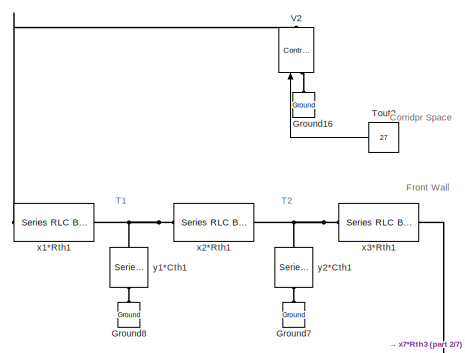
[diagram: root canvas - part 1/7, top center region]
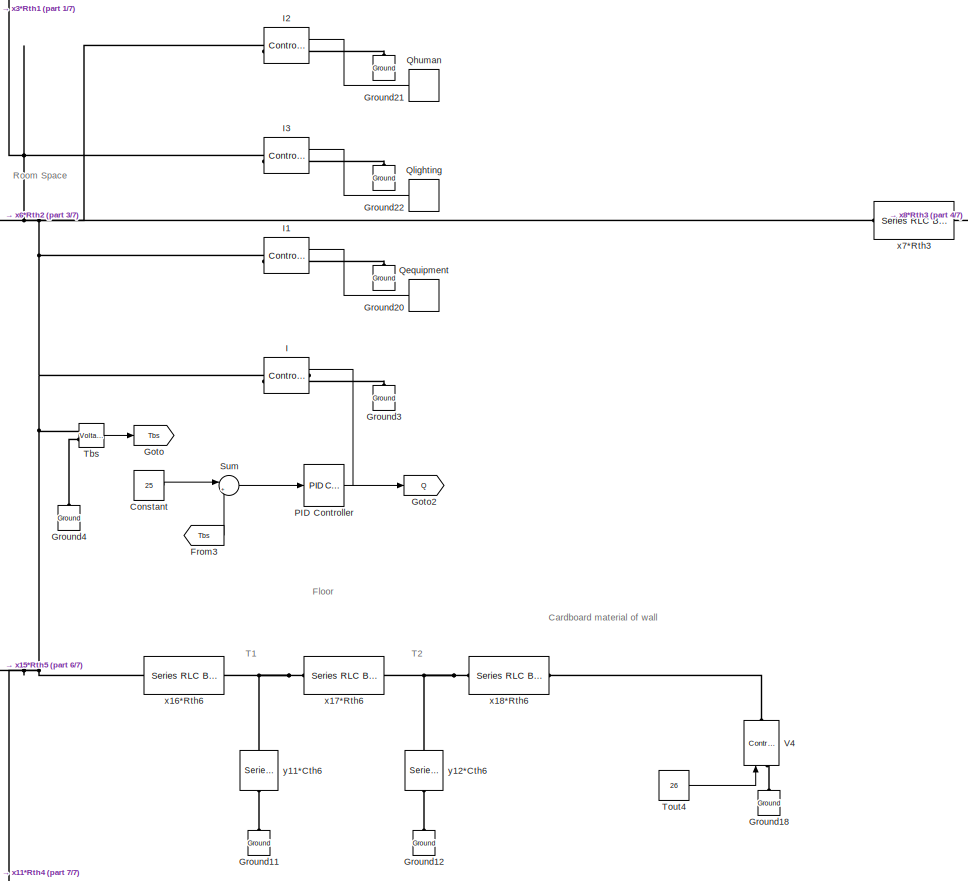
[diagram: root canvas - part 2/7, middle right region]
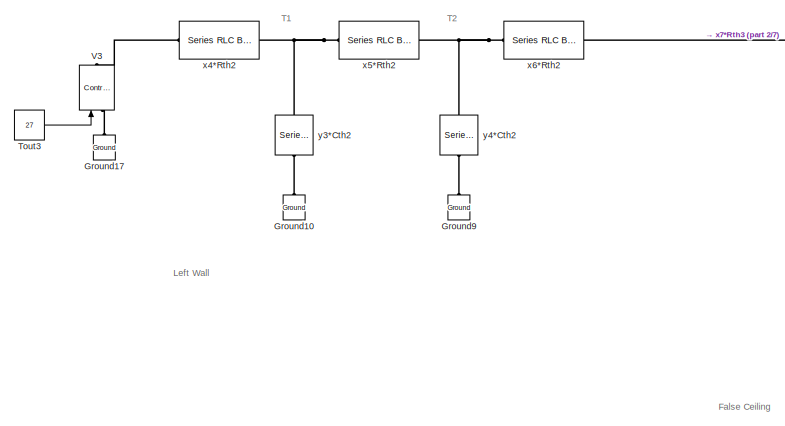
[diagram: root canvas - part 3/7, middle left region]
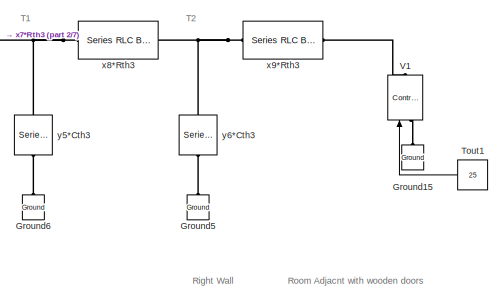
[diagram: root canvas - part 4/7, middle right region]
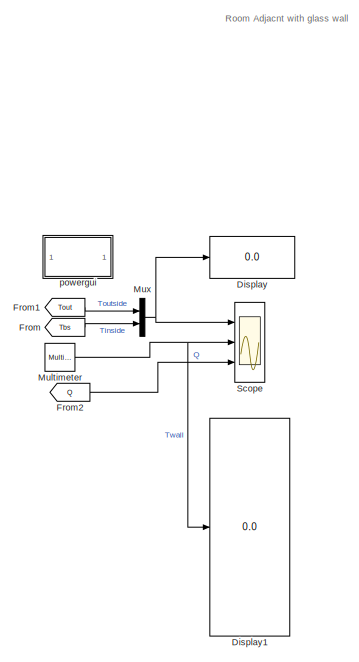
[diagram: root canvas - part 5/7, middle left region]
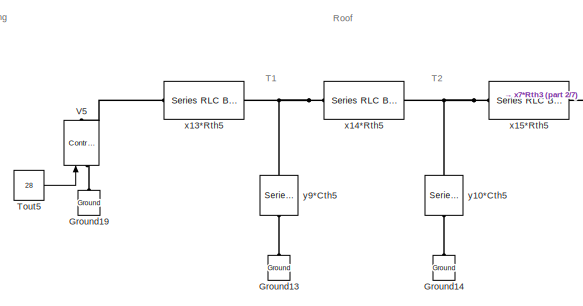
[diagram: root canvas - part 6/7, central region]
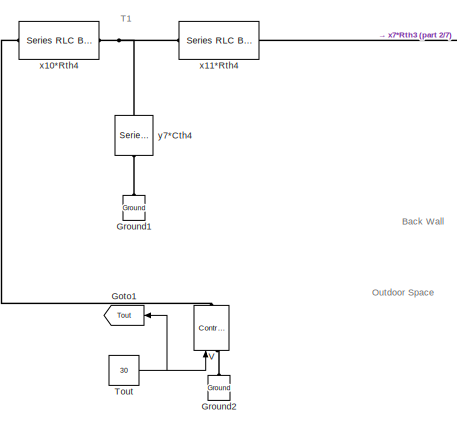
[diagram: root canvas - part 7/7, bottom center region]
MODEL slx_54d3127930ee
KIND model
CONFIG AbsTol = auto
CONFIG FixedStep = Ts
CONFIG InitFcn = Ts=1;\nDuration=36000;\n%% Coefficients of Rs and Cs\ny1 = 0.5\nx1 = 0.33;\ny2 = 0.5;\nx2 = 0.33;\nx3 = 0.33;\n\ny3 = 0.5\nx4 = 0.33;\ny4 = 0.5;\nx5 = 0.33;\nx6 = 0.33;\n\ny5 = 0.5\nx7 = 0.33;\ny6 = 0.5;\nx8 = 0.33;\nx9 = 0.33;\n\ny7 = 1\nx10 = 0.5;\n%y8 = 0.5;\nx11 = 0.5;\n%x12= 0.33;\n\ny9 = 0.5\nx13 = 0.33;\ny10 = 0.5;\nx14 = 0.33;\nx15 = 0.33;\n\ny11 = 0.5\nx16 = 0.33;\ny12 = 0.5;\nx17 = 0.33;\nx18 = 0.33;\n\nT1_initial_front=28;\nT...<+1089ch>
CONFIG MaxStep = auto
CONFIG MinStep = auto
CONFIG RelTol = 1e-3
CONFIG SampleTimeConstraint = Unconstrained
CONFIG Solver = ode3
CONFIG SolverMode = Auto
CONFIG SolverName = ode3
CONFIG StartTime = 0.0
CONFIG StopTime = Duration
BLOCK [Constant] Constant
  Value = 25
BLOCK [Display] Display
  Decimation = 1
  Ports = [1]
BLOCK [Display] Display1
  Decimation = 1
  Ports = [1]
BLOCK [From] From
  GotoTag = Tbs
BLOCK [From] From1
  GotoTag = Tout
BLOCK [From] From2
  GotoTag = Q
BLOCK [From] From3
  GotoTag = Tbs
BLOCK [Goto] Goto
  GotoTag = Tbs
BLOCK [Goto] Goto1
  GotoTag = Tout
BLOCK [Goto] Goto2
  GotoTag = Q
BLOCK [Reference] Ground1  REF=powerlib/Elements/Ground
  Ports = [0, 0, 0, 0, 0, 1]
  SourceBlock = powerlib/Elements/Ground
  SourceType = Ground
BLOCK [Reference] Ground10  REF=powerlib/Elements/Ground
  Ports = [0, 0, 0, 0, 0, 1]
  SourceBlock = powerlib/Elements/Ground
  SourceType = Ground
BLOCK [Reference] Ground11  REF=powerlib/Elements/Ground
  Ports = [0, 0, 0, 0, 0, 1]
  SourceBlock = powerlib/Elements/Ground
  SourceType = Ground
BLOCK [Reference] Ground12  REF=powerlib/Elements/Ground
  Ports = [0, 0, 0, 0, 0, 1]
  SourceBlock = powerlib/Elements/Ground
  SourceType = Ground
BLOCK [Reference] Ground13  REF=powerlib/Elements/Ground
  Ports = [0, 0, 0, 0, 0, 1]
  SourceBlock = powerlib/Elements/Ground
  SourceType = Ground
BLOCK [Reference] Ground14  REF=powerlib/Elements/Ground
  Ports = [0, 0, 0, 0, 0, 1]
  SourceBlock = powerlib/Elements/Ground
  SourceType = Ground
BLOCK [Reference] Ground15  REF=powerlib/Elements/Ground
  Ports = [0, 0, 0, 0, 0, 1]
  SourceBlock = powerlib/Elements/Ground
  SourceType = Ground
BLOCK [Reference] Ground16  REF=powerlib/Elements/Ground
  Ports = [0, 0, 0, 0, 0, 1]
  SourceBlock = powerlib/Elements/Ground
  SourceType = Ground
BLOCK [Reference] Ground17  REF=powerlib/Elements/Ground
  Ports = [0, 0, 0, 0, 0, 1]
  SourceBlock = powerlib/Elements/Ground
  SourceType = Ground
BLOCK [Reference] Ground18  REF=powerlib/Elements/Ground
  Ports = [0, 0, 0, 0, 0, 1]
  SourceBlock = powerlib/Elements/Ground
  SourceType = Ground
BLOCK [Reference] Ground19  REF=powerlib/Elements/Ground
  Ports = [0, 0, 0, 0, 0, 1]
  SourceBlock = powerlib/Elements/Ground
  SourceType = Ground
BLOCK [Reference] Ground2  REF=powerlib/Elements/Ground
  Ports = [0, 0, 0, 0, 0, 1]
  SourceBlock = powerlib/Elements/Ground
  SourceType = Ground
BLOCK [Reference] Ground20  REF=powerlib/Elements/Ground
  Ports = [0, 0, 0, 0, 0, 1]
  SourceBlock = powerlib/Elements/Ground
  SourceType = Ground
BLOCK [Reference] Ground21  REF=powerlib/Elements/Ground
  Ports = [0, 0, 0, 0, 0, 1]
  SourceBlock = powerlib/Elements/Ground
  SourceType = Ground
BLOCK [Reference] Ground22  REF=powerlib/Elements/Ground
  Ports = [0, 0, 0, 0, 0, 1]
  SourceBlock = powerlib/Elements/Ground
  SourceType = Ground
BLOCK [Reference] Ground3  REF=powerlib/Elements/Ground
  Ports = [0, 0, 0, 0, 0, 1]
  SourceBlock = powerlib/Elements/Ground
  SourceType = Ground
BLOCK [Reference] Ground4  REF=powerlib/Elements/Ground
  Ports = [0, 0, 0, 0, 0, 1]
  SourceBlock = powerlib/Elements/Ground
  SourceType = Ground
BLOCK [Reference] Ground5  REF=powerlib/Elements/Ground
  Ports = [0, 0, 0, 0, 0, 1]
  SourceBlock = powerlib/Elements/Ground
  SourceType = Ground
BLOCK [Reference] Ground6  REF=powerlib/Elements/Ground
  Ports = [0, 0, 0, 0, 0, 1]
  SourceBlock = powerlib/Elements/Ground
  SourceType = Ground
BLOCK [Reference] Ground7  REF=powerlib/Elements/Ground
  Ports = [0, 0, 0, 0, 0, 1]
  SourceBlock = powerlib/Elements/Ground
  SourceType = Ground
BLOCK [Reference] Ground8  REF=powerlib/Elements/Ground
  Ports = [0, 0, 0, 0, 0, 1]
  SourceBlock = powerlib/Elements/Ground
  SourceType = Ground
BLOCK [Reference] Ground9  REF=powerlib/Elements/Ground
  Ports = [0, 0, 0, 0, 0, 1]
  SourceBlock = powerlib/Elements/Ground
  SourceType = Ground
BLOCK [Reference] I  REF=powerlib/Electrical
Sources/Controlled Current Source
  Ports = [1, 0, 0, 0, 0, 1, 1]
  SourceBlock = powerlib/Electrical\nSources/Controlled Current Source
  SourceType = Controlled Current Source
BLOCK [Reference] I1  REF=powerlib/Electrical
Sources/Controlled Current Source
  Ports = [1, 0, 0, 0, 0, 1, 1]
  SourceBlock = powerlib/Electrical\nSources/Controlled Current Source
  SourceType = Controlled Current Source
BLOCK [Reference] I2  REF=powerlib/Electrical
Sources/Controlled Current Source
  Ports = [1, 0, 0, 0, 0, 1, 1]
  SourceBlock = powerlib/Electrical\nSources/Controlled Current Source
  SourceType = Controlled Current Source
BLOCK [Reference] I3  REF=powerlib/Electrical
Sources/Controlled Current Source
  Ports = [1, 0, 0, 0, 0, 1, 1]
  SourceBlock = powerlib/Electrical\nSources/Controlled Current Source
  SourceType = Controlled Current Source
BLOCK [Reference] Multimeter  REF=powerlib/Measurements/Multimeter
  Ports = [0, 1]
  SourceBlock = powerlib/Measurements/Multimeter
  SourceType = MultimeterPSB
BLOCK [Mux] Mux
  DisplayOption = bar
  Inputs = 2
  Ports = [2, 1]
BLOCK [Reference] PID Controller  REF=simulink/Continuous/PID Controller
  Ports = [1, 1]
  SourceBlock = simulink/Continuous/PID Controller
  SourceType = PID 1dof
BLOCK [DiscretePulseGenerator] Qequipment
  Period = 1e5
  PhaseDelay = 1e4
  Ports = [0, 1]
  PulseType = Time based
  PulseWidth = 50
BLOCK [DiscretePulseGenerator] Qhuman
  Amplitude = 0.5
  Period = 1e5
  PhaseDelay = 1e4
  Ports = [0, 1]
  PulseType = Time based
  PulseWidth = 50
BLOCK [DiscretePulseGenerator] Qlighting
  Amplitude = 0.75
  Period = 1e5
  PhaseDelay = 1e4
  Ports = [0, 1]
  PulseType = Time based
  PulseWidth = 50
BLOCK [Scope] Scope
  Floating = off
  NumInputPorts = 3
  Ports = [3]
  ScopeSpecificationString = Simulink.scopes.TimeScopeBlockCfg('CurrentConfiguration', extmgr.ConfigurationSet(extmgr.Configuration('Core','General UI',true,'FigureColor',[1 1 1]),extmgr.Configuration('Core','Source UI',true),extmgr.Configuration('Sources','WiredSimulink',true,'DataLoggingSaveFormat','Array','DataLoggingDecimation','1','DataLoggingDecimateData',true),extmgr.Configuration('Visuals','Time Domain',true,'Serializ...<+5313ch>
BLOCK [Sum] Sum
  IconShape = round
  InputSameDT = off
  Inputs = |+-
  OutDataTypeStr = Inherit: Inherit via internal rule
  Ports = [2, 1]
  SaturateOnIntegerOverflow = off
BLOCK [Reference] Tbs  REF=powerlib/Measurements/Voltage Measurement
  Ports = [0, 1, 0, 0, 0, 2]
  SourceBlock = powerlib/Measurements/Voltage Measurement
  SourceType = Voltage Measurement
  UserDataPersistent = on
BLOCK [Constant] Tout
  Value = 30
BLOCK [Constant] Tout1
  Value = 25
BLOCK [Constant] Tout2
  Value = 27
BLOCK [Constant] Tout3
  Value = 27
BLOCK [Constant] Tout4
  Value = 26
BLOCK [Constant] Tout5
  Value = 28
BLOCK [Reference] V  REF=powerlib/Electrical
Sources/Controlled Voltage Source
  Ports = [1, 0, 0, 0, 0, 1, 1]
  SourceBlock = powerlib/Electrical\nSources/Controlled Voltage Source
  SourceType = Controlled Voltage Source
BLOCK [Reference] V1  REF=powerlib/Electrical
Sources/Controlled Voltage Source
  Ports = [1, 0, 0, 0, 0, 1, 1]
  SourceBlock = powerlib/Electrical\nSources/Controlled Voltage Source
  SourceType = Controlled Voltage Source
BLOCK [Reference] V2  REF=powerlib/Electrical
Sources/Controlled Voltage Source
  Ports = [1, 0, 0, 0, 0, 1, 1]
  SourceBlock = powerlib/Electrical\nSources/Controlled Voltage Source
  SourceType = Controlled Voltage Source
BLOCK [Reference] V3  REF=powerlib/Electrical
Sources/Controlled Voltage Source
  Ports = [1, 0, 0, 0, 0, 1, 1]
  SourceBlock = powerlib/Electrical\nSources/Controlled Voltage Source
  SourceType = Controlled Voltage Source
BLOCK [Reference] V4  REF=powerlib/Electrical
Sources/Controlled Voltage Source
  Ports = [1, 0, 0, 0, 0, 1, 1]
  SourceBlock = powerlib/Electrical\nSources/Controlled Voltage Source
  SourceType = Controlled Voltage Source
BLOCK [Reference] V5  REF=powerlib/Electrical
Sources/Controlled Voltage Source
  Ports = [1, 0, 0, 0, 0, 1, 1]
  SourceBlock = powerlib/Electrical\nSources/Controlled Voltage Source
  SourceType = Controlled Voltage Source
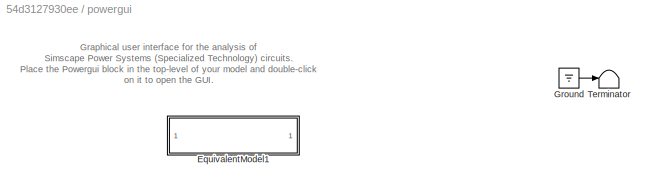
BLOCK [SubSystem] powergui
  AncestorBlock = powerlib/powergui
  DialogController = POWERSYS.PowerSysDialog
  InitFcn = powergui( 'InitFcn_Callback' , gcb , 0 , [ ] );
  OpenFcn = sps_rtmsupport('OpenFcn',gcbh)
  Ports = []
  PreSaveFcn = powergui( 'PreSaveFcn_Callback' , gcb , [ ] , [ ] );
  Priority = 1
  RequestExecContextInheritance = off
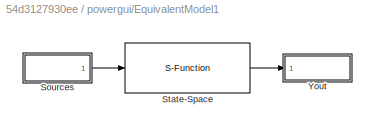
BLOCK [SubSystem] powergui/EquivalentModel1
  Ports = []
  RequestExecContextInheritance = off
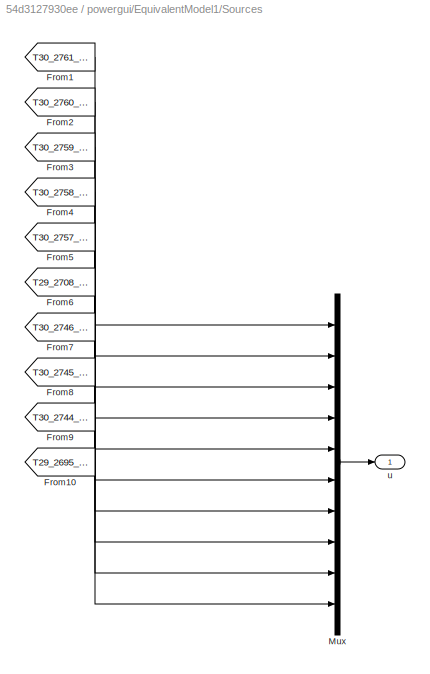
BLOCK [SubSystem] powergui/EquivalentModel1/Sources
  Ports = [0, 1]
  RequestExecContextInheritance = off
BLOCK [From] powergui/EquivalentModel1/Sources/From1
  GotoTag = T30_2761_1234868534713
  TagVisibility = global
BLOCK [From] powergui/EquivalentModel1/Sources/From10
  GotoTag = T29_2695_1179154901059
  TagVisibility = global
BLOCK [From] powergui/EquivalentModel1/Sources/From2
  GotoTag = T30_2760_1235008060644
  TagVisibility = global
BLOCK [From] powergui/EquivalentModel1/Sources/From3
  GotoTag = T30_2759_1235216709241
  TagVisibility = global
BLOCK [From] powergui/EquivalentModel1/Sources/From4
  GotoTag = T30_2758_1235494480506
  TagVisibility = global
BLOCK [From] powergui/EquivalentModel1/Sources/From5
  GotoTag = T30_2757_1235841374437
  TagVisibility = global
BLOCK [From] powergui/EquivalentModel1/Sources/From6
  GotoTag = T29_2708_1200055371847
  TagVisibility = global
BLOCK [From] powergui/EquivalentModel1/Sources/From7
  GotoTag = T30_2746_1215505013207
  TagVisibility = global
BLOCK [From] powergui/EquivalentModel1/Sources/From8
  GotoTag = T30_2745_1215753049437
  TagVisibility = global
BLOCK [From] powergui/EquivalentModel1/Sources/From9
  GotoTag = T30_2744_1216070208333
  TagVisibility = global
BLOCK [Mux] powergui/EquivalentModel1/Sources/Mux
  DisplayOption = bar
  Inputs = [1 1 1 1 1 1 1 1 1 1]
  Ports = [10, 1]
BLOCK [Outport] powergui/EquivalentModel1/Sources/u
  IconDisplay = Port number
BLOCK [S-Function] powergui/EquivalentModel1/State-Space
  EnableBusSupport = off
  FunctionName = sfun_spssw_discc
  Parameters = S.Ts,S.A, S.B, S.C, S.D, S.x0,S.EnableUseOfTLC
  Ports = [1, 1]
  SFunctionDeploymentMode = off
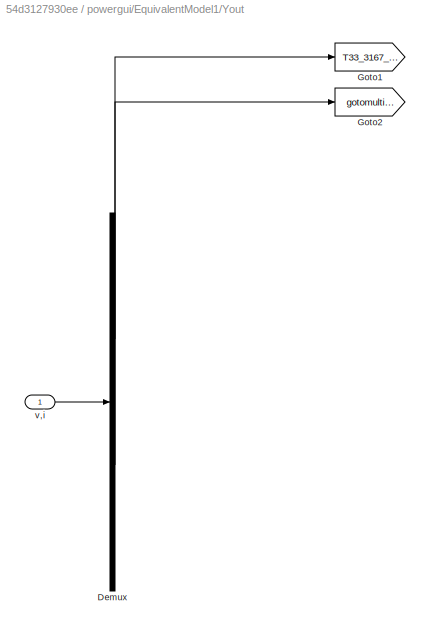
BLOCK [SubSystem] powergui/EquivalentModel1/Yout
  Ports = [1]
  RequestExecContextInheritance = off
BLOCK [Demux] powergui/EquivalentModel1/Yout/Demux
  DisplayOption = bar
  Outputs = [1 11]
  Ports = [1, 2]
BLOCK [Goto] powergui/EquivalentModel1/Yout/Goto1
  GotoTag = T33_3167_1839336353977
  TagVisibility = global
BLOCK [Goto] powergui/EquivalentModel1/Yout/Goto2
  GotoTag = gotomultimeterPSB
  TagVisibility = global
BLOCK [Inport] powergui/EquivalentModel1/Yout/v,i
  IconDisplay = Port number
BLOCK [Ground] powergui/Ground
BLOCK [Terminator] powergui/Terminator
BLOCK [Reference] x1*Rth1  REF=powerlib/Elements/Series RLC Branch
  Ports = [0, 0, 0, 0, 0, 1, 1]
  SourceBlock = powerlib/Elements/Series RLC Branch
  SourceType = Series RLC Branch
BLOCK [Reference] x10*Rth4  REF=powerlib/Elements/Series RLC Branch
  Ports = [0, 0, 0, 0, 0, 1, 1]
  SourceBlock = powerlib/Elements/Series RLC Branch
  SourceType = Series RLC Branch
BLOCK [Reference] x11*Rth4  REF=powerlib/Elements/Series RLC Branch
  Ports = [0, 0, 0, 0, 0, 1, 1]
  SourceBlock = powerlib/Elements/Series RLC Branch
  SourceType = Series RLC Branch
BLOCK [Reference] x13*Rth5  REF=powerlib/Elements/Series RLC Branch
  Ports = [0, 0, 0, 0, 0, 1, 1]
  SourceBlock = powerlib/Elements/Series RLC Branch
  SourceType = Series RLC Branch
BLOCK [Reference] x14*Rth5  REF=powerlib/Elements/Series RLC Branch
  Ports = [0, 0, 0, 0, 0, 1, 1]
  SourceBlock = powerlib/Elements/Series RLC Branch
  SourceType = Series RLC Branch
BLOCK [Reference] x15*Rth5  REF=powerlib/Elements/Series RLC Branch
  Ports = [0, 0, 0, 0, 0, 1, 1]
  SourceBlock = powerlib/Elements/Series RLC Branch
  SourceType = Series RLC Branch
BLOCK [Reference] x16*Rth6  REF=powerlib/Elements/Series RLC Branch
  Ports = [0, 0, 0, 0, 0, 1, 1]
  SourceBlock = powerlib/Elements/Series RLC Branch
  SourceType = Series RLC Branch
BLOCK [Reference] x17*Rth6  REF=powerlib/Elements/Series RLC Branch
  Ports = [0, 0, 0, 0, 0, 1, 1]
  SourceBlock = powerlib/Elements/Series RLC Branch
  SourceType = Series RLC Branch
BLOCK [Reference] x18*Rth6  REF=powerlib/Elements/Series RLC Branch
  Ports = [0, 0, 0, 0, 0, 1, 1]
  SourceBlock = powerlib/Elements/Series RLC Branch
  SourceType = Series RLC Branch
BLOCK [Reference] x2*Rth1  REF=powerlib/Elements/Series RLC Branch
  Ports = [0, 0, 0, 0, 0, 1, 1]
  SourceBlock = powerlib/Elements/Series RLC Branch
  SourceType = Series RLC Branch
BLOCK [Reference] x3*Rth1  REF=powerlib/Elements/Series RLC Branch
  Ports = [0, 0, 0, 0, 0, 1, 1]
  SourceBlock = powerlib/Elements/Series RLC Branch
  SourceType = Series RLC Branch
BLOCK [Reference] x4*Rth2  REF=powerlib/Elements/Series RLC Branch
  Ports = [0, 0, 0, 0, 0, 1, 1]
  SourceBlock = powerlib/Elements/Series RLC Branch
  SourceType = Series RLC Branch
BLOCK [Reference] x5*Rth2  REF=powerlib/Elements/Series RLC Branch
  Ports = [0, 0, 0, 0, 0, 1, 1]
  SourceBlock = powerlib/Elements/Series RLC Branch
  SourceType = Series RLC Branch
BLOCK [Reference] x6*Rth2  REF=powerlib/Elements/Series RLC Branch
  Ports = [0, 0, 0, 0, 0, 1, 1]
  SourceBlock = powerlib/Elements/Series RLC Branch
  SourceType = Series RLC Branch
BLOCK [Reference] x7*Rth3  REF=powerlib/Elements/Series RLC Branch
  Ports = [0, 0, 0, 0, 0, 1, 1]
  SourceBlock = powerlib/Elements/Series RLC Branch
  SourceType = Series RLC Branch
BLOCK [Reference] x8*Rth3  REF=powerlib/Elements/Series RLC Branch
  Ports = [0, 0, 0, 0, 0, 1, 1]
  SourceBlock = powerlib/Elements/Series RLC Branch
  SourceType = Series RLC Branch
BLOCK [Reference] x9*Rth3  REF=powerlib/Elements/Series RLC Branch
  Ports = [0, 0, 0, 0, 0, 1, 1]
  SourceBlock = powerlib/Elements/Series RLC Branch
  SourceType = Series RLC Branch
BLOCK [Reference] y1*Cth1  REF=powerlib/Elements/Series RLC Branch
  Ports = [0, 0, 0, 0, 0, 1, 1]
  SourceBlock = powerlib/Elements/Series RLC Branch
  SourceType = Series RLC Branch
BLOCK [Reference] y10*Cth5  REF=powerlib/Elements/Series RLC Branch
  Ports = [0, 0, 0, 0, 0, 1, 1]
  SourceBlock = powerlib/Elements/Series RLC Branch
  SourceType = Series RLC Branch
BLOCK [Reference] y11*Cth6  REF=powerlib/Elements/Series RLC Branch
  Ports = [0, 0, 0, 0, 0, 1, 1]
  SourceBlock = powerlib/Elements/Series RLC Branch
  SourceType = Series RLC Branch
BLOCK [Reference] y12*Cth6  REF=powerlib/Elements/Series RLC Branch
  Ports = [0, 0, 0, 0, 0, 1, 1]
  SourceBlock = powerlib/Elements/Series RLC Branch
  SourceType = Series RLC Branch
BLOCK [Reference] y2*Cth1  REF=powerlib/Elements/Series RLC Branch
  Ports = [0, 0, 0, 0, 0, 1, 1]
  SourceBlock = powerlib/Elements/Series RLC Branch
  SourceType = Series RLC Branch
BLOCK [Reference] y3*Cth2  REF=powerlib/Elements/Series RLC Branch
  Ports = [0, 0, 0, 0, 0, 1, 1]
  SourceBlock = powerlib/Elements/Series RLC Branch
  SourceType = Series RLC Branch
BLOCK [Reference] y4*Cth2  REF=powerlib/Elements/Series RLC Branch
  Ports = [0, 0, 0, 0, 0, 1, 1]
  SourceBlock = powerlib/Elements/Series RLC Branch
  SourceType = Series RLC Branch
BLOCK [Reference] y5*Cth3  REF=powerlib/Elements/Series RLC Branch
  Ports = [0, 0, 0, 0, 0, 1, 1]
  SourceBlock = powerlib/Elements/Series RLC Branch
  SourceType = Series RLC Branch
BLOCK [Reference] y6*Cth3  REF=powerlib/Elements/Series RLC Branch
  Ports = [0, 0, 0, 0, 0, 1, 1]
  SourceBlock = powerlib/Elements/Series RLC Branch
  SourceType = Series RLC Branch
BLOCK [Reference] y7*Cth4  REF=powerlib/Elements/Series RLC Branch
  Ports = [0, 0, 0, 0, 0, 1, 1]
  SourceBlock = powerlib/Elements/Series RLC Branch
  SourceType = Series RLC Branch
BLOCK [Reference] y9*Cth5  REF=powerlib/Elements/Series RLC Branch
  Ports = [0, 0, 0, 0, 0, 1, 1]
  SourceBlock = powerlib/Elements/Series RLC Branch
  SourceType = Series RLC Branch
ANNOTATION (root): Room Space
ANNOTATION (root): Back Wall
ANNOTATION (root): Floor
ANNOTATION (root): Front Wall
ANNOTATION (root): Left Wall
ANNOTATION (root): Right Wall
ANNOTATION (root): Roof
ANNOTATION (root): Cardboard material of wall
ANNOTATION (root): Corridpr Space
ANNOTATION (root): False Ceiling
ANNOTATION (root): Outdoor Space
ANNOTATION (root): Room Adjacnt with glass wall
ANNOTATION (root): Room Adjacnt with wooden doors
ANNOTATION (root): T1
ANNOTATION (root): T2
ANNOTATION powergui: Graphical user interface for the analysis of Simscape Power Systems (Specialized Technology) circuits. Place the Powergui block in the top-level of your model and double-click on it to open the GUI.
LINE Constant:1 -> Sum:1
LINE From1:1 -> Mux:1
LINE From2:1 -> Scope:3
LINE From3:1 -> Sum:2
LINE From:1 -> Mux:2
NET Multimeter:1 -> Display1:1, Scope:2
NET Mux:1 -> Display:1, Scope:1
NET PID Controller:1 -> Goto2:1, I:1
LINE Qequipment:1 -> I1:1
LINE Qhuman:1 -> I2:1
LINE Qlighting:1 -> I3:1
LINE Sum:1 -> PID Controller:1
LINE Tbs:1 -> Goto:1
LINE Tout1:1 -> V1:1
LINE Tout2:1 -> V2:1
LINE Tout3:1 -> V3:1
LINE Tout4:1 -> V4:1
LINE Tout5:1 -> V5:1
NET Tout:1 -> Goto1:1, V:1
PLINE Ground10:LConn1 -- y3*Cth2:RConn1
PLINE Ground11:LConn1 -- y11*Cth6:RConn1
PLINE Ground12:LConn1 -- y12*Cth6:RConn1
PLINE Ground13:LConn1 -- y9*Cth5:RConn1
PLINE Ground14:LConn1 -- y10*Cth5:RConn1
PLINE Ground15:LConn1 -- V1:LConn1
PLINE Ground16:LConn1 -- V2:LConn1
PLINE Ground17:LConn1 -- V3:LConn1
PLINE Ground18:LConn1 -- V4:LConn1
PLINE Ground19:LConn1 -- V5:LConn1
PLINE Ground1:LConn1 -- y7*Cth4:RConn1
PLINE Ground20:LConn1 -- I1:LConn1
PLINE Ground21:LConn1 -- I2:LConn1
PLINE Ground22:LConn1 -- I3:LConn1
PLINE Ground2:LConn1 -- V:LConn1
PLINE Ground3:LConn1 -- I:LConn1
PLINE Ground4:LConn1 -- Tbs:LConn2
PLINE Ground5:LConn1 -- y6*Cth3:RConn1
PLINE Ground6:LConn1 -- y5*Cth3:RConn1
PLINE Ground7:LConn1 -- y2*Cth1:RConn1
PLINE Ground8:LConn1 -- y1*Cth1:RConn1
PLINE Ground9:LConn1 -- y4*Cth2:RConn1
PNET net1: I1:RConn1 -- I2:RConn1 -- I3:RConn1 -- I:RConn1 -- Tbs:LConn1 -- x11*Rth4:RConn1 -- x15*Rth5:RConn1 -- x16*Rth6:LConn1 -- x3*Rth1:RConn1 -- x6*Rth2:RConn1 -- x7*Rth3:LConn1
PLINE V1:RConn1 -- x9*Rth3:RConn1
PLINE V2:RConn1 -- x1*Rth1:LConn1
PLINE V3:RConn1 -- x4*Rth2:LConn1
PLINE V4:RConn1 -- x18*Rth6:RConn1
PLINE V5:RConn1 -- x13*Rth5:LConn1
PLINE V:RConn1 -- x10*Rth4:LConn1
PNET net2: x1*Rth1:RConn1 -- x2*Rth1:LConn1 -- y1*Cth1:LConn1
PNET net3: x10*Rth4:RConn1 -- x11*Rth4:LConn1 -- y7*Cth4:LConn1
PNET net4: x13*Rth5:RConn1 -- x14*Rth5:LConn1 -- y9*Cth5:LConn1
PNET net5: x14*Rth5:RConn1 -- x15*Rth5:LConn1 -- y10*Cth5:LConn1
PNET net6: x16*Rth6:RConn1 -- x17*Rth6:LConn1 -- y11*Cth6:LConn1
PNET net7: x17*Rth6:RConn1 -- x18*Rth6:LConn1 -- y12*Cth6:LConn1
PNET net8: x2*Rth1:RConn1 -- x3*Rth1:LConn1 -- y2*Cth1:LConn1
PNET net9: x4*Rth2:RConn1 -- x5*Rth2:LConn1 -- y3*Cth2:LConn1
PNET net10: x5*Rth2:RConn1 -- x6*Rth2:LConn1 -- y4*Cth2:LConn1
PNET net11: x7*Rth3:RConn1 -- x8*Rth3:LConn1 -- y5*Cth3:LConn1
PNET net12: x8*Rth3:RConn1 -- x9*Rth3:LConn1 -- y6*Cth3:LConn1
note: NET lines group one-source signal fan-out (src -> all destinations, sorted); 1:1 wires keep LINE; PNET lines group multi-terminal physical nets as a canonical sorted terminal list (undirected conserving connections); 2-terminal nets keep the pairwise PLINE form
